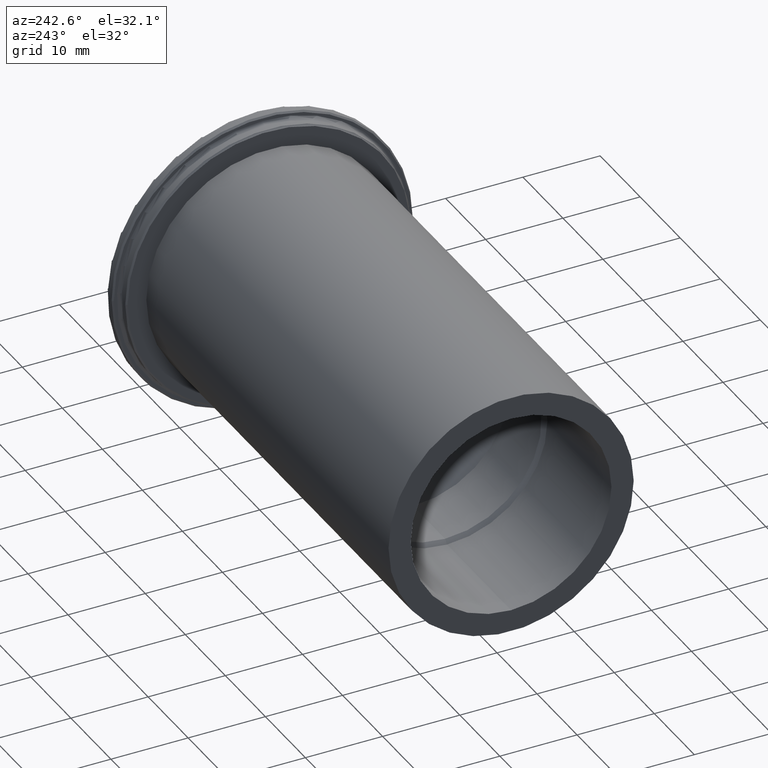
[diagram: clean part render]
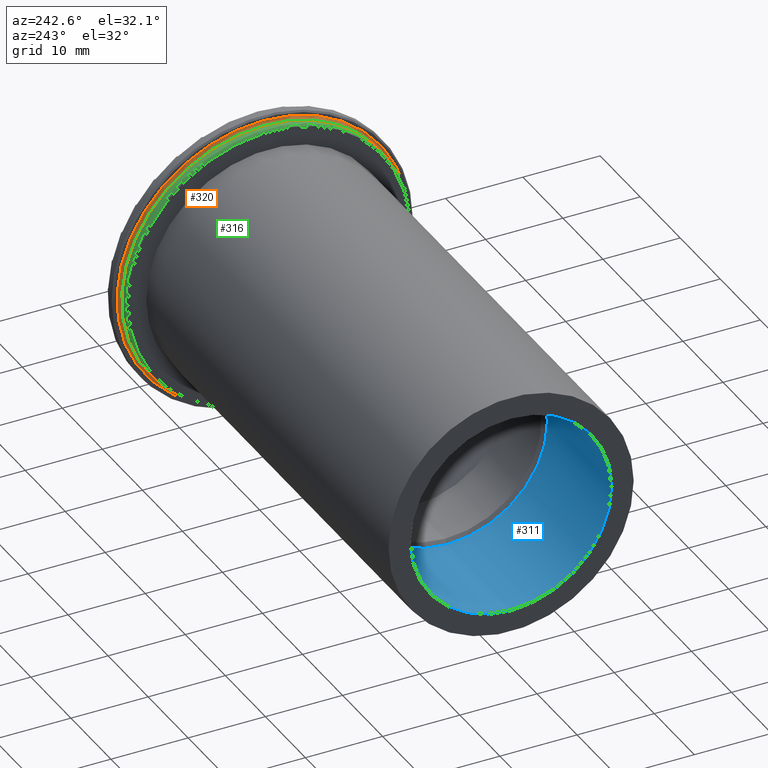
[diagram: same view with three faces highlighted in distinct colors, each labeled with its STEP entity id]
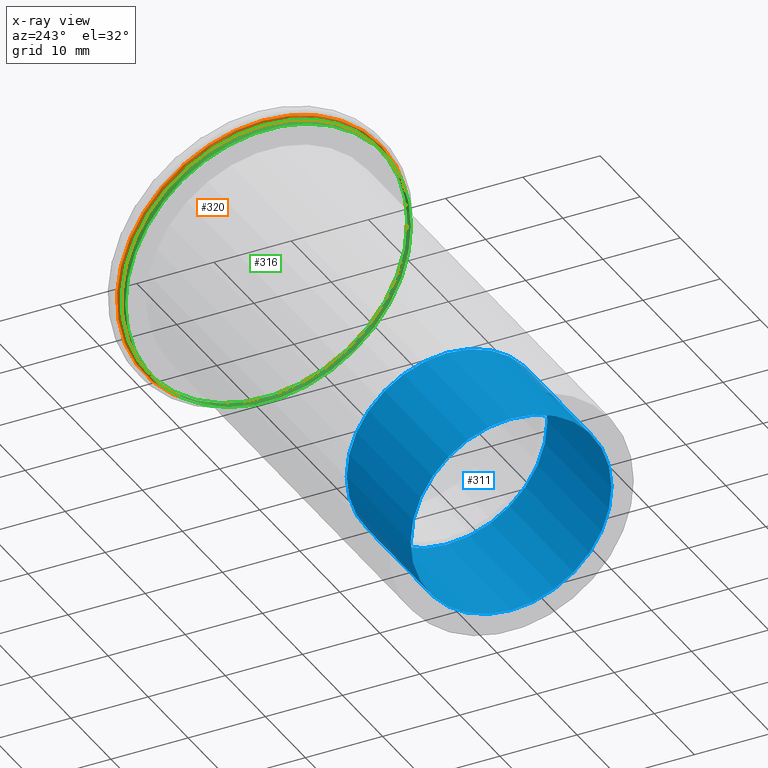
[diagram: x-ray of the same camera — body ghosted, the three highlighted faces saturated]
A machine part, auxiliary view with three faces highlighted in distinct colors.
The next image is the same camera in x-ray (body ghosted, the three faces saturated) — at least one of them is partly hidden behind the body in this view.
Their STEP definitions:

[orange] entity #320 — the highlighted toroidal blend (fillet) surface has major radius 18.9 mm and minor (blend) radius 0.4 mm.
#86=TOROIDAL_SURFACE('',#380,18.9,0.4);
#112=FACE_OUTER_BOUND('',#131,.T.);
#131=EDGE_LOOP('',(#290,#291,#292,#293,#294));
#167=CIRCLE('',#366,18.9);
#171=CIRCLE('',#372,18.5);
#172=CIRCLE('',#373,18.5);
#176=CIRCLE('',#381,0.4);
#193=VERTEX_POINT('',#563);
#197=VERTEX_POINT('',#574);
#198=VERTEX_POINT('',#575);
#221=EDGE_CURVE('',#193,#193,#167,.T.);
#226=EDGE_CURVE('',#197,#198,#171,.T.);
#228=EDGE_CURVE('',#198,#197,#172,.T.);
#232=EDGE_CURVE('',#198,#193,#176,.T.);
#290=ORIENTED_EDGE('',*,*,#226,.T.);
#291=ORIENTED_EDGE('',*,*,#232,.T.);
#292=ORIENTED_EDGE('',*,*,#221,.T.);
#293=ORIENTED_EDGE('',*,*,#232,.F.);
#294=ORIENTED_EDGE('',*,*,#228,.T.);
#320=ADVANCED_FACE('',(#112),#86,.F.);
#366=AXIS2_PLACEMENT_3D('',#564,#450,#451);
#372=AXIS2_PLACEMENT_3D('',#576,#463,#464);
#373=AXIS2_PLACEMENT_3D('',#578,#466,#467);
#380=AXIS2_PLACEMENT_3D('',#587,#480,#481);
#381=AXIS2_PLACEMENT_3D('',#588,#482,#483);
#450=DIRECTION('center_axis',(-1.,0.,0.));
#451=DIRECTION('ref_axis',(0.,-1.,1.83697019872103E-16));
#463=DIRECTION('center_axis',(1.,0.,0.));
#464=DIRECTION('ref_axis',(0.,-1.,1.83697019872103E-16));
#466=DIRECTION('center_axis',(1.,0.,0.));
#467=DIRECTION('ref_axis',(0.,-1.,1.83697019872103E-16));
#480=DIRECTION('center_axis',(1.,0.,0.));
#481=DIRECTION('ref_axis',(0.,0.,-1.));
#482=DIRECTION('center_axis',(0.,-1.,-1.22464679914735E-16));
#483=DIRECTION('ref_axis',(0.,-1.22464679914735E-16,1.));
#563=CARTESIAN_POINT('',(-1.5,-2.3145824503885E-15,18.9));
#564=CARTESIAN_POINT('Origin',(-1.5,0.,0.));
#574=CARTESIAN_POINT('',(-1.9,-18.5,-2.2655965784226E-15));
#575=CARTESIAN_POINT('',(-1.9,-2.2655965784226E-15,18.5));
#576=CARTESIAN_POINT('Origin',(-1.9,0.,0.));
#578=CARTESIAN_POINT('Origin',(-1.9,0.,0.));
#587=CARTESIAN_POINT('Origin',(-1.9,0.,0.));
#588=CARTESIAN_POINT('Origin',(-1.9,-2.3145824503885E-15,18.9));

[blue] entity #311 — the highlighted cylindrical surface (bore or boss wall) has radius 13 mm, axis along (-1, 0, 0).
#103=FACE_OUTER_BOUND('',#119,.T.);
#119=EDGE_LOOP('',(#253,#254,#255,#256));
#139=LINE('',#547,#149);
#149=VECTOR('',#431,13.);
#160=CIRCLE('',#355,13.);
#161=CIRCLE('',#357,13.);
#186=VERTEX_POINT('',#541);
#187=VERTEX_POINT('',#545);
#210=EDGE_CURVE('',#186,#186,#160,.T.);
#212=EDGE_CURVE('',#187,#187,#161,.T.);
#213=EDGE_CURVE('',#187,#186,#139,.T.);
#253=ORIENTED_EDGE('',*,*,#212,.F.);
#254=ORIENTED_EDGE('',*,*,#213,.T.);
#255=ORIENTED_EDGE('',*,*,#210,.F.);
#256=ORIENTED_EDGE('',*,*,#213,.F.);
#303=CYLINDRICAL_SURFACE('',#356,13.);
#311=ADVANCED_FACE('',(#103),#303,.F.);
#355=AXIS2_PLACEMENT_3D('',#542,#424,#425);
#356=AXIS2_PLACEMENT_3D('',#544,#427,#428);
#357=AXIS2_PLACEMENT_3D('',#546,#429,#430);
#424=DIRECTION('center_axis',(-1.,0.,0.));
#425=DIRECTION('ref_axis',(0.,0.,1.));
#427=DIRECTION('center_axis',(-1.,0.,0.));
#428=DIRECTION('ref_axis',(0.,0.,1.));
#429=DIRECTION('center_axis',(1.,0.,0.));
#430=DIRECTION('ref_axis',(0.,0.,1.));
#431=DIRECTION('',(1.,0.,0.));
#541=CARTESIAN_POINT('',(-47.5,-1.59204083889156E-15,-13.));
#542=CARTESIAN_POINT('Origin',(-47.5,0.,0.));
#544=CARTESIAN_POINT('Origin',(-55.5,0.,0.));
#545=CARTESIAN_POINT('',(-63.5,-1.59204083889156E-15,-13.));
#546=CARTESIAN_POINT('Origin',(-63.5,0.,0.));
#547=CARTESIAN_POINT('',(-55.5,-1.59204083889156E-15,-13.));

[green] entity #316 — the highlighted cylindrical surface (bore or boss wall) has radius 18.5 mm, axis along (1, 0, 0).
#108=FACE_OUTER_BOUND('',#125,.T.);
#125=EDGE_LOOP('',(#275,#276,#277,#278,#279,#280));
#143=LINE('',#577,#153);
#153=VECTOR('',#465,18.5);
#168=CIRCLE('',#368,18.5);
#169=CIRCLE('',#369,18.5);
#171=CIRCLE('',#372,18.5);
#172=CIRCLE('',#373,18.5);
#194=VERTEX_POINT('',#566);
#195=VERTEX_POINT('',#567);
#197=VERTEX_POINT('',#574);
#198=VERTEX_POINT('',#575);
#222=EDGE_CURVE('',#194,#195,#168,.T.);
#223=EDGE_CURVE('',#195,#194,#169,.T.);
#226=EDGE_CURVE('',#197,#198,#171,.T.);
#227=EDGE_CURVE('',#197,#195,#143,.T.);
#228=EDGE_CURVE('',#198,#197,#172,.T.);
#275=ORIENTED_EDGE('',*,*,#226,.F.);
#276=ORIENTED_EDGE('',*,*,#227,.T.);
#277=ORIENTED_EDGE('',*,*,#222,.F.);
#278=ORIENTED_EDGE('',*,*,#223,.F.);
#279=ORIENTED_EDGE('',*,*,#227,.F.);
#280=ORIENTED_EDGE('',*,*,#228,.F.);
#305=CYLINDRICAL_SURFACE('',#371,18.5);
#316=ADVANCED_FACE('',(#108),#305,.T.);
#368=AXIS2_PLACEMENT_3D('',#568,#454,#455);
#369=AXIS2_PLACEMENT_3D('',#569,#456,#457);
#371=AXIS2_PLACEMENT_3D('',#573,#461,#462);
#372=AXIS2_PLACEMENT_3D('',#576,#463,#464);
#373=AXIS2_PLACEMENT_3D('',#578,#466,#467);
#454=DIRECTION('center_axis',(-1.,0.,0.));
#455=DIRECTION('ref_axis',(0.,-1.,0.));
#456=DIRECTION('center_axis',(-1.,0.,0.));
#457=DIRECTION('ref_axis',(0.,-1.,0.));
#461=DIRECTION('center_axis',(1.,0.,0.));
#462=DIRECTION('ref_axis',(0.,1.,0.));
#463=DIRECTION('center_axis',(1.,0.,0.));
#464=DIRECTION('ref_axis',(0.,-1.,1.83697019872103E-16));
#465=DIRECTION('',(-1.,0.,0.));
#466=DIRECTION('center_axis',(1.,0.,0.));
#467=DIRECTION('ref_axis',(0.,-1.,1.83697019872103E-16));
#566=CARTESIAN_POINT('',(-2.8,18.5,-2.2655965784226E-15));
#567=CARTESIAN_POINT('',(-2.8,-18.5,-2.2655965784226E-15));
#568=CARTESIAN_POINT('Origin',(-2.8,0.,0.));
#569=CARTESIAN_POINT('Origin',(-2.8,0.,0.));
#573=CARTESIAN_POINT('Origin',(-2.25,0.,0.));
#574=CARTESIAN_POINT('',(-1.9,-18.5,-2.2655965784226E-15));
#575=CARTESIAN_POINT('',(-1.9,-2.2655965784226E-15,18.5));
#576=CARTESIAN_POINT('Origin',(-1.9,0.,0.));
#577=CARTESIAN_POINT('',(-2.25,-18.5,-2.2655965784226E-15));
#578=CARTESIAN_POINT('Origin',(-1.9,0.,0.));